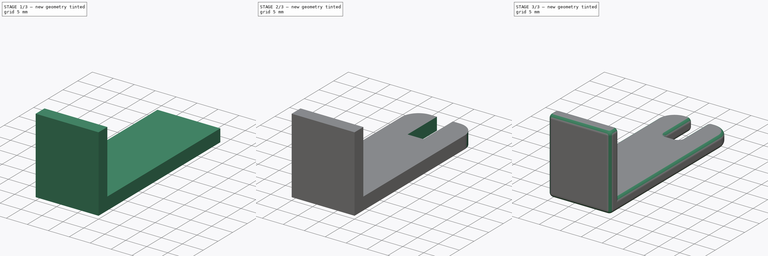
[diagram: build sequence overview — one tinted view per stage of 3, left to right]
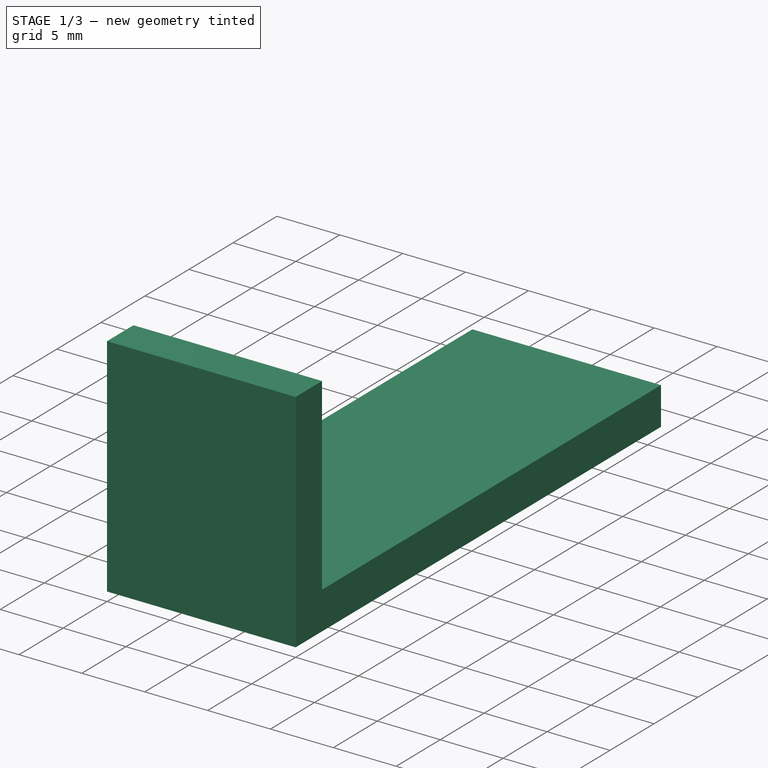
[diagram: stage 1 of 3 — iso view after this stage's code; geometry added in this stage tinted green]
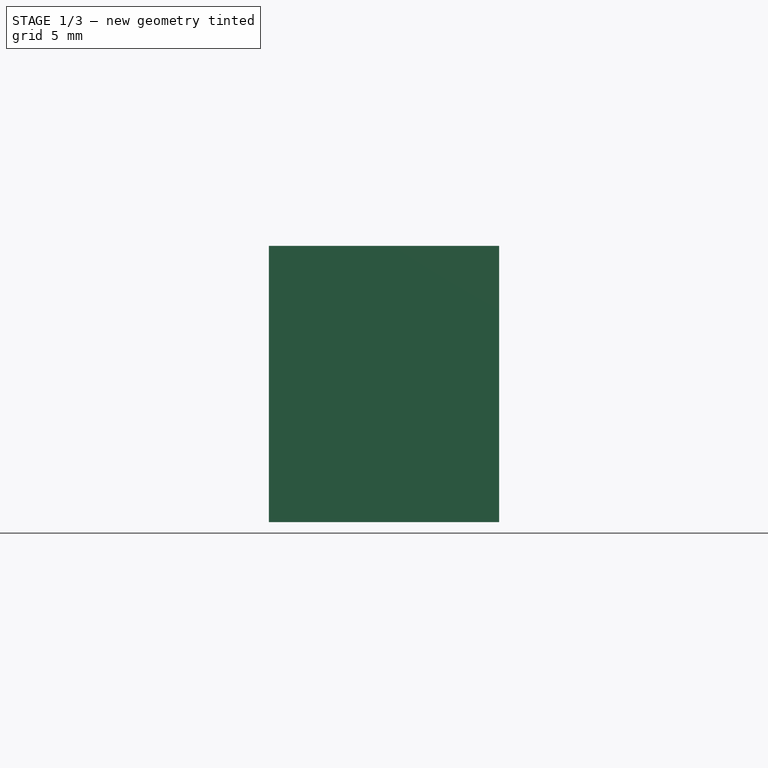
[diagram: stage 1 of 3 — front view after this stage's code; geometry added in this stage tinted green]
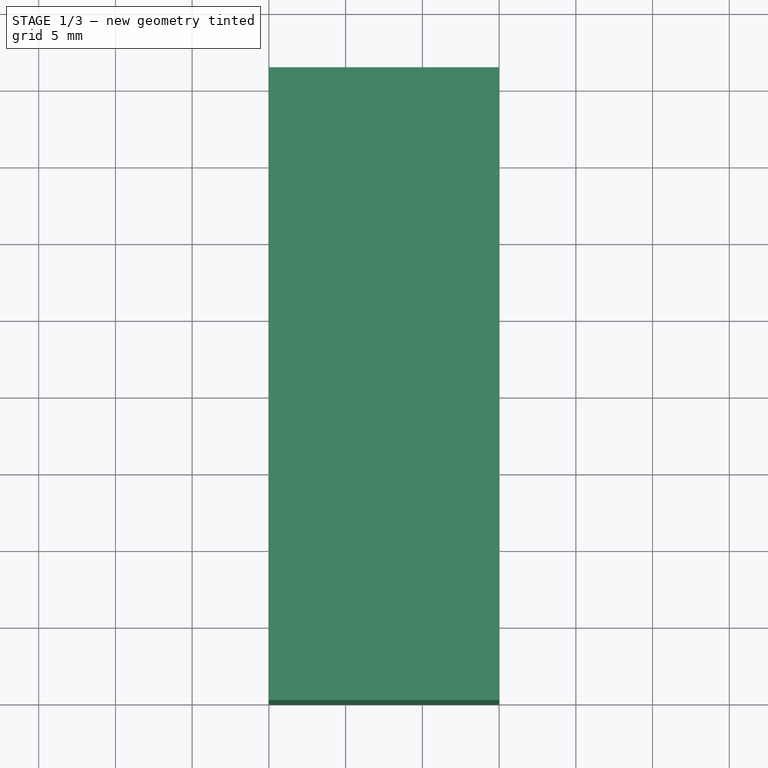
[diagram: stage 1 of 3 — top view after this stage's code; geometry added in this stage tinted green]
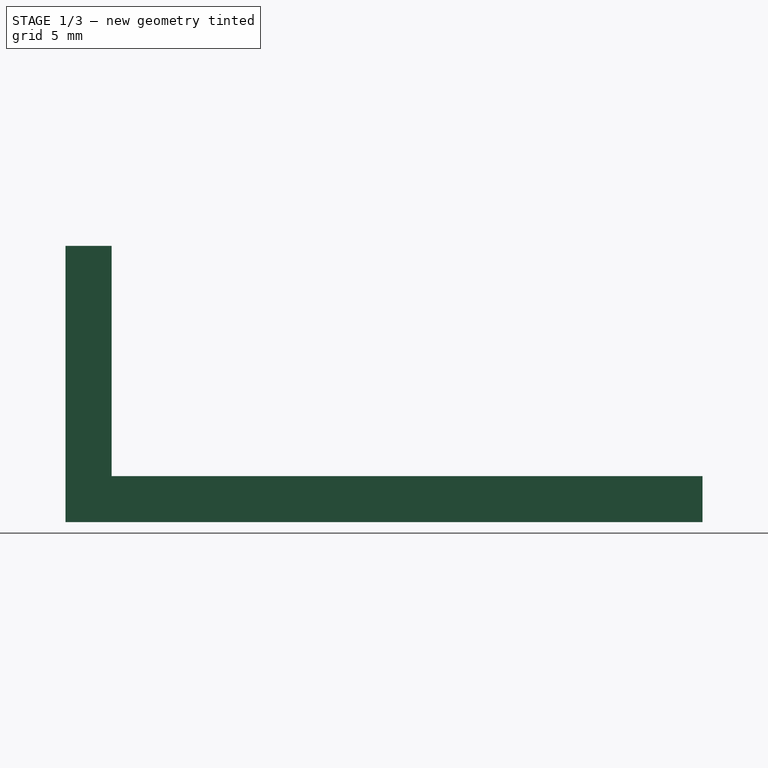
[diagram: stage 1 of 3 — right view after this stage's code; geometry added in this stage tinted green]
FCSTD DOCUMENT  (FreeCAD 0.18R4 (GitTag))
Label: Cable Holder
License: All rights reserved
LicenseURL: http://en.wikipedia.org/wiki/All_rights_reserved
objects: Sketcher::SketchObject×3, PartDesign::Fillet×3, PartDesign::Pad×2, Spreadsheet::Sheet×1, PartDesign::Pocket×1, PartDesign::Body×1
note: 13 computed .brp shape members not serialized (recipe doc carries the construction recipe); baked Part::Feature solids carry a one-line shape summary decoded from their .brp

FEATURE [Spreadsheet::Sheet] Spreadsheet  label="v"
  cells = A1=Variable Name; B1=Value; A2=Table Thickness; B2(table_thickness)==23.5mm; A3=Width; B3(width)==15mm; A4=Thickness; B4(thickness)==3mm; A5=Height Above Table; B5(height_above_table)==15mm; A6=Cord Gap; B6(cord_gap)==3.8mm; A7=Cord Gap Height; B7(cord_gap_height)==10mm; A8=Flange Length; B8(flange_length)==15mm; A9=General Fillet; B9(general_filet)==2mm; A10=Top Fillet; B10(top_fillet)==4mm
FEATURE [Sketcher::SketchObject] Sketch  label="Base Sketch"
  MapMode = 5
  Support = -> [XY_Plane]
  expr: Constraints[10] = v.width
  expr: Constraints[9] = v.height_above_table + v.table_thickness + v.thickness
  sketch-geometry (4):
    g0: LineSegment StartX=0 StartY=0 StartZ=0 EndX=15 EndY=0 EndZ=0
    g1: LineSegment StartX=15 StartY=0 StartZ=0 EndX=15 EndY=41.5 EndZ=0
    g2: LineSegment StartX=15 StartY=41.5 StartZ=0 EndX=0 EndY=41.5 EndZ=0
    g3: LineSegment StartX=0 StartY=41.5 StartZ=0 EndX=0 EndY=0 EndZ=0
  constraints (11):
    c: Coincident(g0,g1)
    c: Coincident(g1,g2)
    c: Coincident(g2,g3)
    c: Coincident(g3,g0)
    c: Horizontal(g0)
    c: Horizontal(g2)
    c: Vertical(g1)
    c: Vertical(g3)
    c: Coincident(g-1,g0)
    c: DistanceY(g1,g1) = 41.5
    c: DistanceX(g2,g2) = 15
FEATURE [PartDesign::Pad] Pad  label="Base"
  Length = 3
  Length2 = 100
  Profile = -> Sketch
  Type = 0
  expr: Length = v.thickness
FEATURE [Sketcher::SketchObject] Sketch001  label="Flange Sketch"
  ExternalGeometry = -> [Pad]
  MapMode = 5
  Placement = pos=(0,0,3) rot=(0,0,1;0rad)
  Support = -> [Pad]
  expr: Constraints[9] = v.thickness
  sketch-geometry (4):
    g0: LineSegment StartX=0 StartY=0 StartZ=0 EndX=15 EndY=0 EndZ=0
    g1: LineSegment StartX=15 StartY=0 StartZ=0 EndX=15 EndY=3 EndZ=0
    g2: LineSegment StartX=15 StartY=3 StartZ=0 EndX=0 EndY=3 EndZ=0
    g3: LineSegment StartX=0 StartY=3 StartZ=0 EndX=0 EndY=0 EndZ=0
  constraints (10):
    c: Coincident(g0,g1)
    c: Coincident(g1,g2)
    c: Coincident(g2,g3)
    c: Coincident(g3,g0)
    c: Horizontal(g2)
    c: Vertical(g1)
    c: Vertical(g3)
    c: Coincident(g-1,g0)
    c: Coincident(g0,g-3)
    c: DistanceY(g1,g1) = 3
FEATURE [PartDesign::Pad] Pad001  label="Flange"
  BaseFeature = -> Pad
  Length = 15
  Length2 = 100
  Profile = -> Sketch001
  Type = 0
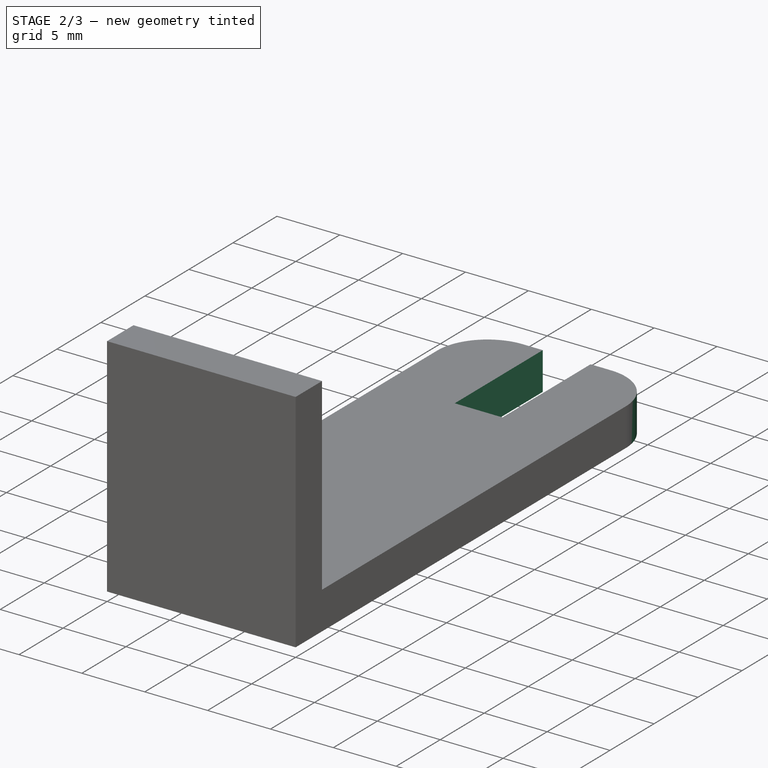
[diagram: stage 2 of 3 — iso view after this stage's code; geometry added in this stage tinted green]
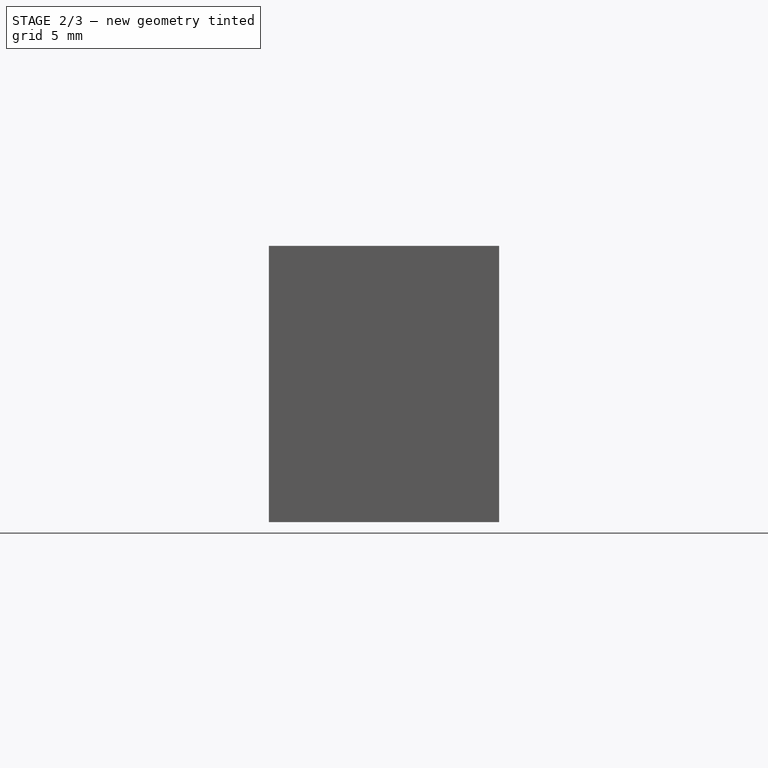
[diagram: stage 2 of 3 — front view after this stage's code; geometry added in this stage tinted green]
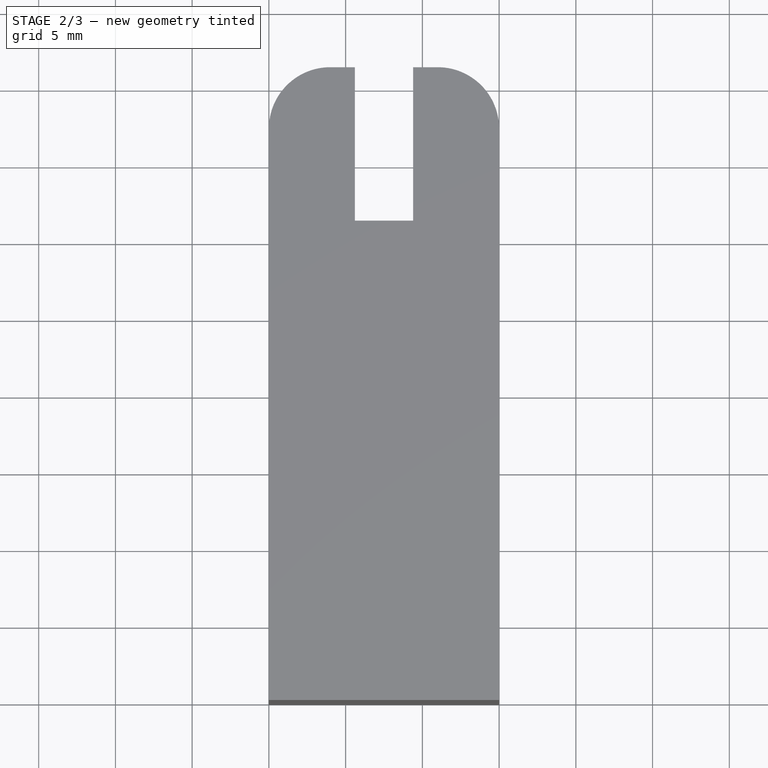
[diagram: stage 2 of 3 — top view after this stage's code; geometry added in this stage tinted green]
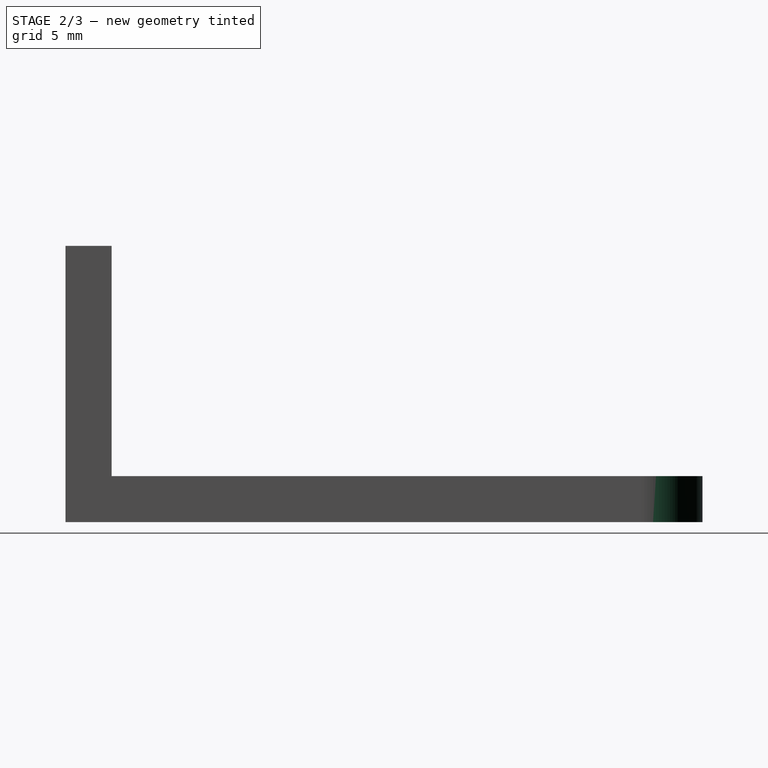
[diagram: stage 2 of 3 — right view after this stage's code; geometry added in this stage tinted green]
FEATURE [Sketcher::SketchObject] Sketch002  label="Cord Gap Sketch"
  ExternalGeometry = -> [Pad001]
  MapMode = 5
  Placement = pos=(0,0,3) rot=(0,0,1;0rad)
  Support = -> [Pad001]
  expr: Constraints[11] = v.width / 2 - v.cord_gap / 2
  expr: Constraints[9] = v.cord_gap
  expr: Constraints[8] = v.cord_gap_height
  sketch-geometry (4):
    g0: LineSegment StartX=5.6 StartY=41.5 StartZ=0 EndX=9.4 EndY=41.5 EndZ=0
    g1: LineSegment StartX=9.4 StartY=41.5 StartZ=0 EndX=9.4 EndY=31.5 EndZ=0
    g2: LineSegment StartX=9.4 StartY=31.5 StartZ=0 EndX=5.6 EndY=31.5 EndZ=0
    g3: LineSegment StartX=5.6 StartY=31.5 StartZ=0 EndX=5.6 EndY=41.5 EndZ=0
  constraints (12):
    c: Coincident(g0,g1)
    c: Coincident(g1,g2)
    c: Coincident(g2,g3)
    c: Coincident(g3,g0)
    c: Horizontal(g0)
    c: Horizontal(g2)
    c: Vertical(g1)
    c: Vertical(g3)
    c: DistanceY(g1,g1) = 10
    c: DistanceX(g0,g0) = 3.8
    c: PointOnObject(g0,g-3)
    c: Distance(g-5,g0) = 5.6
FEATURE [PartDesign::Pocket] Pocket
  BaseFeature = -> Pad001
  Length = 5
  Length2 = 100
  Profile = -> Sketch002
  Type = 2
FEATURE [PartDesign::Fillet] Fillet  label="Top Fillet"
  Base = -> Pocket [Edge5,Edge9]
  BaseFeature = -> Pocket
  Radius = 4
  expr: Radius = v.top_fillet
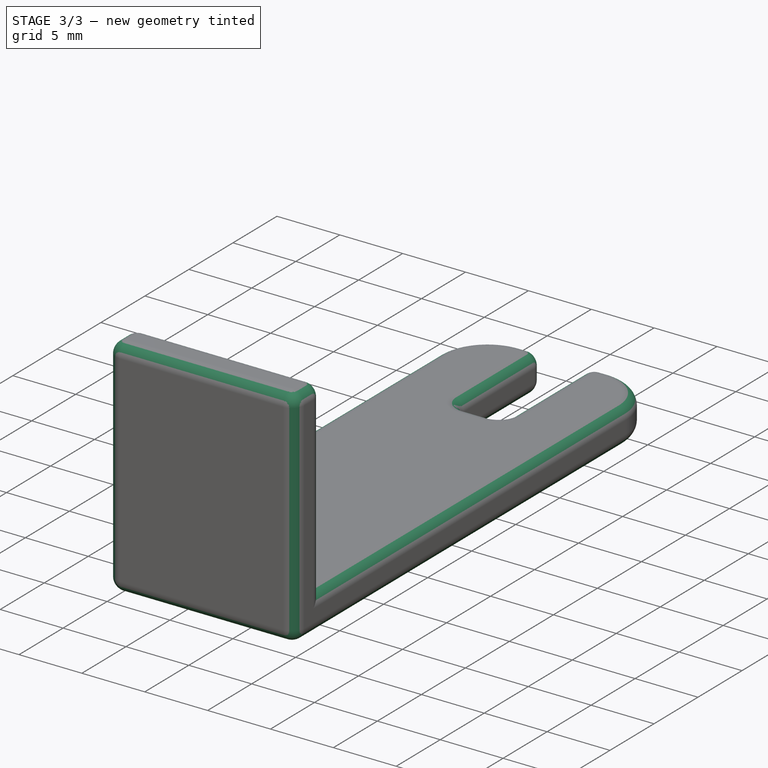
[diagram: stage 3 of 3 — iso view after this stage's code; geometry added in this stage tinted green]
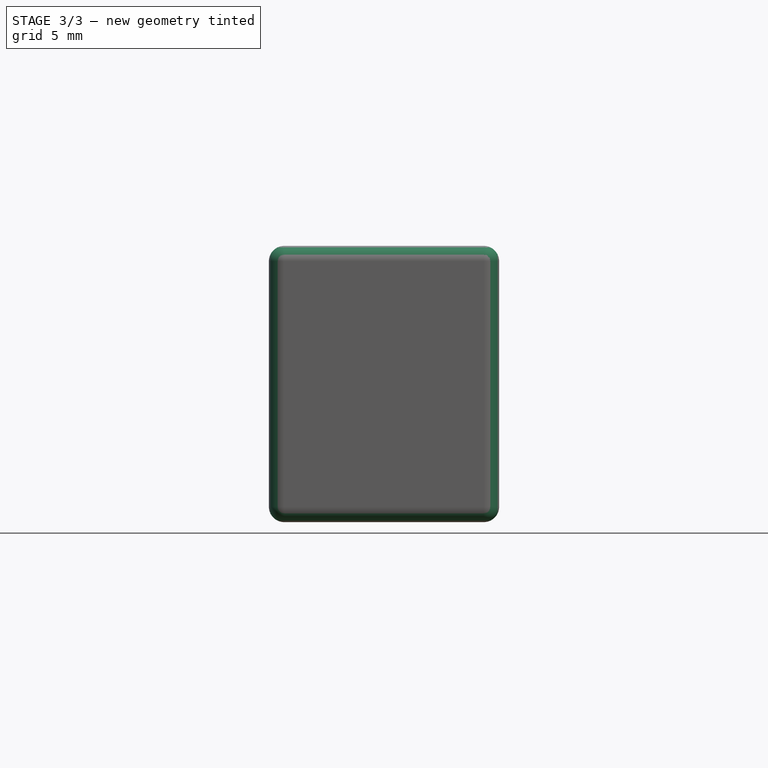
[diagram: stage 3 of 3 — front view after this stage's code; geometry added in this stage tinted green]
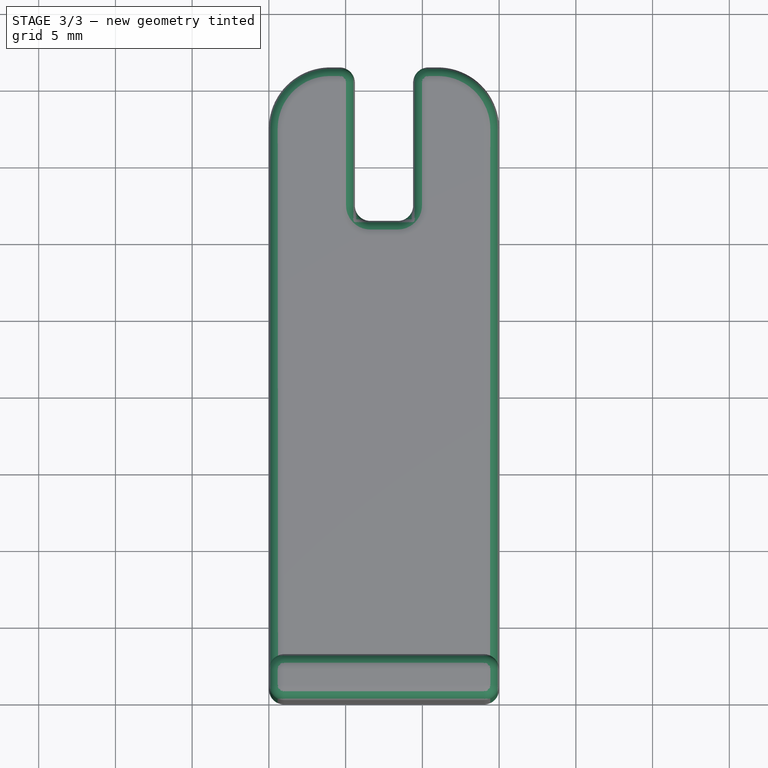
[diagram: stage 3 of 3 — top view after this stage's code; geometry added in this stage tinted green]
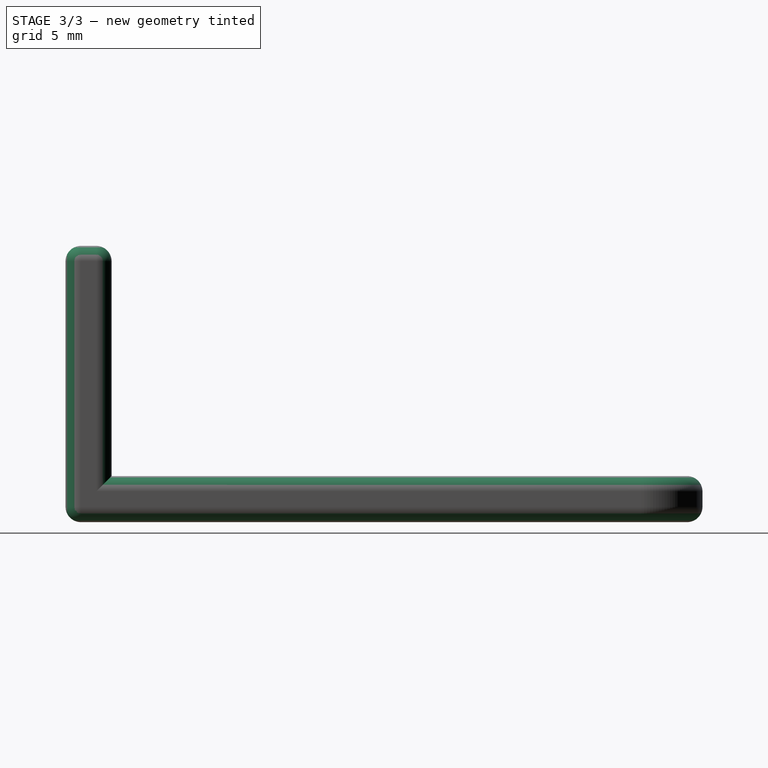
[diagram: stage 3 of 3 — right view after this stage's code; geometry added in this stage tinted green]
FEATURE [PartDesign::Fillet] Fillet001  label="Upper General Fillet"
  Base = -> Fillet [Edge26,Edge11,Edge19,Edge8,Edge30,Edge10,Edge20,Edge23,Edge21,Edge36,Edge14,Edge12,Edge35,Edge33]
  BaseFeature = -> Fillet
  Radius = 1
FEATURE [PartDesign::Fillet] Fillet002  label="Lower General Fillet"
  Base = -> Fillet001 [Edge24,Edge26,Edge53,Edge61,Edge25,Edge27,Edge23,Edge54]
  BaseFeature = -> Fillet001
  Radius = 1
FEATURE [PartDesign::Body] Body
  Group = -> [Sketch,Pad,Sketch001,Pad001,Sketch002,Pocket,Fillet,Fillet001,Fillet002]
  Origin = -> Origin
  Tip = -> Fillet002
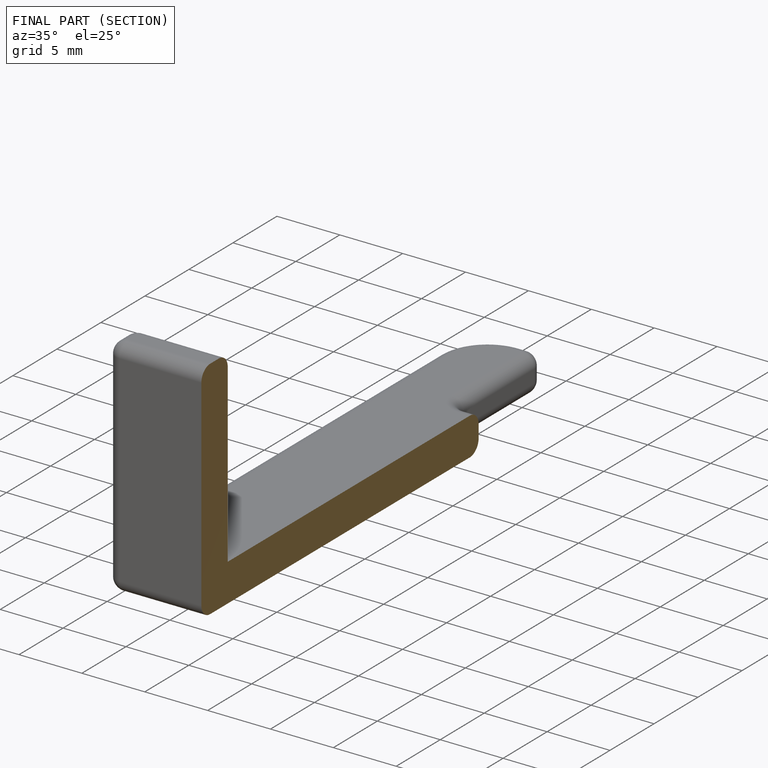
[diagram: finished part — half-section view (interior)]
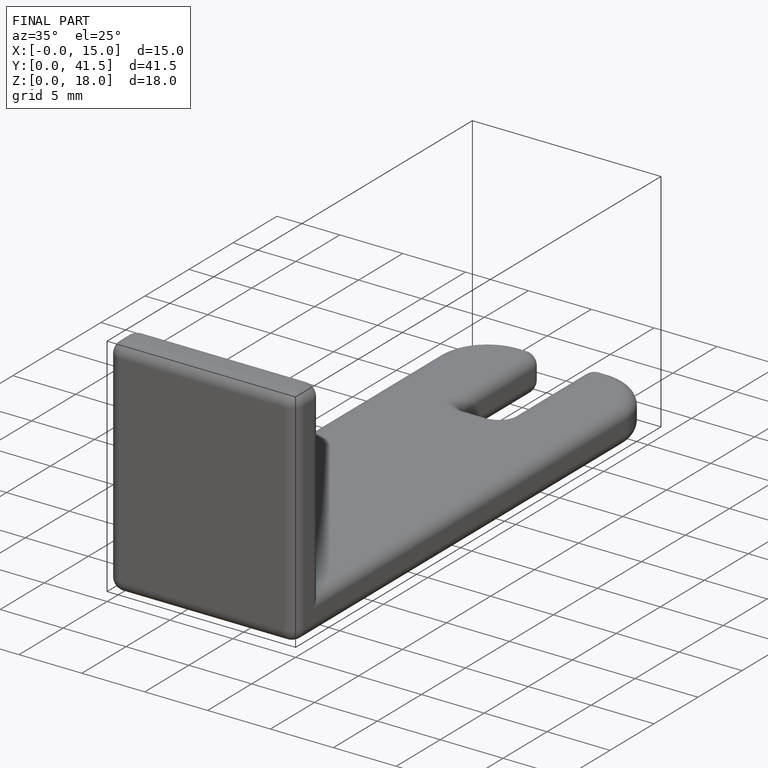
[diagram: finished part — iso view with bounding-box wireframe]
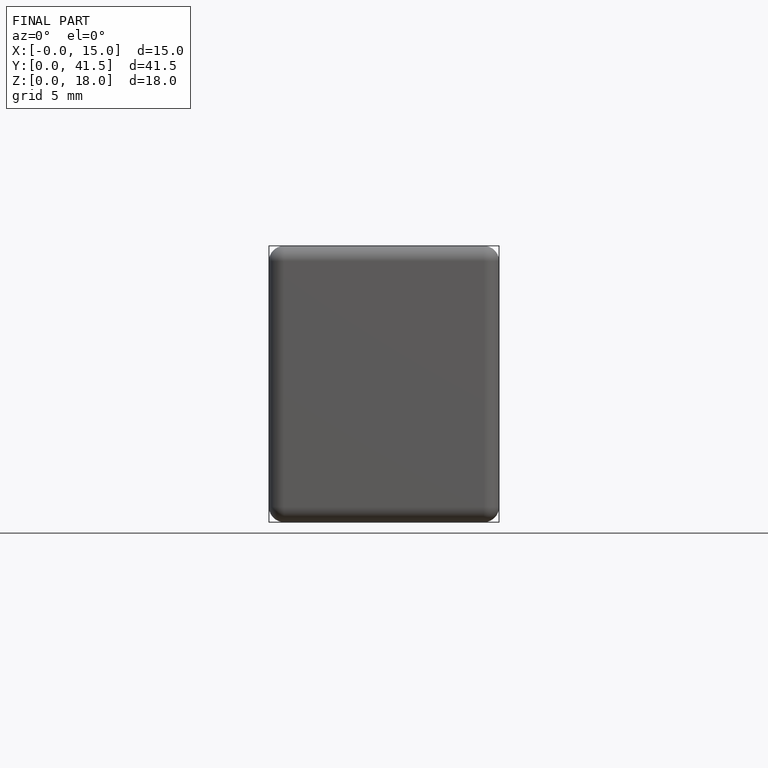
[diagram: finished part — front view with bounding-box wireframe]
